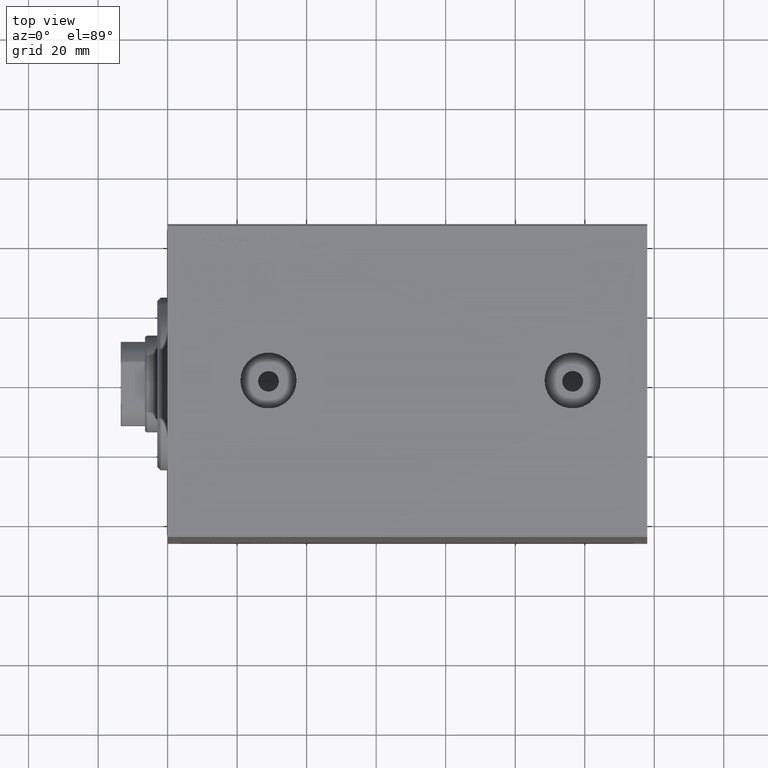
[diagram: clean part render]
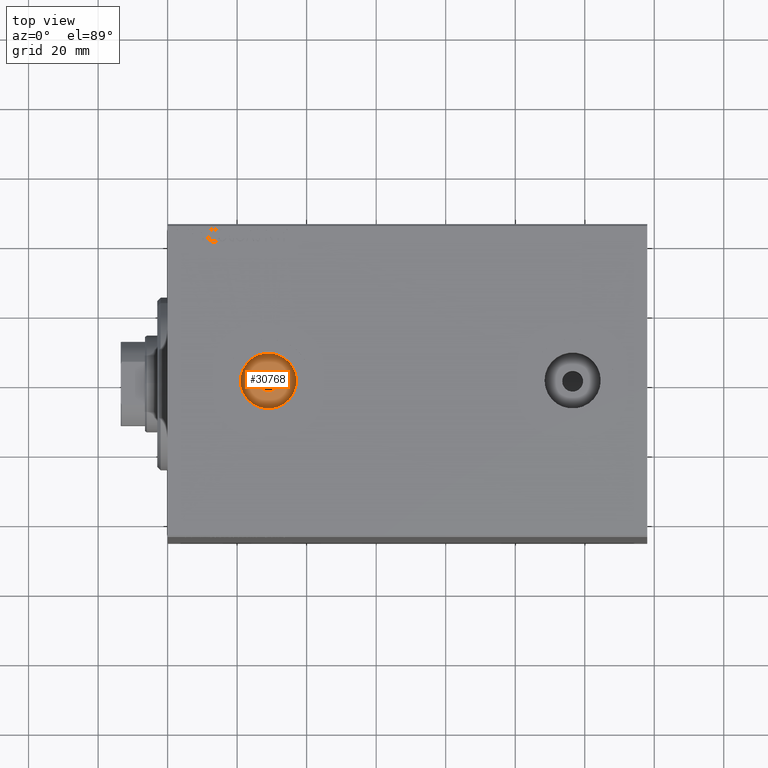
[diagram: same view with one face highlighted and labeled with its STEP entity id]
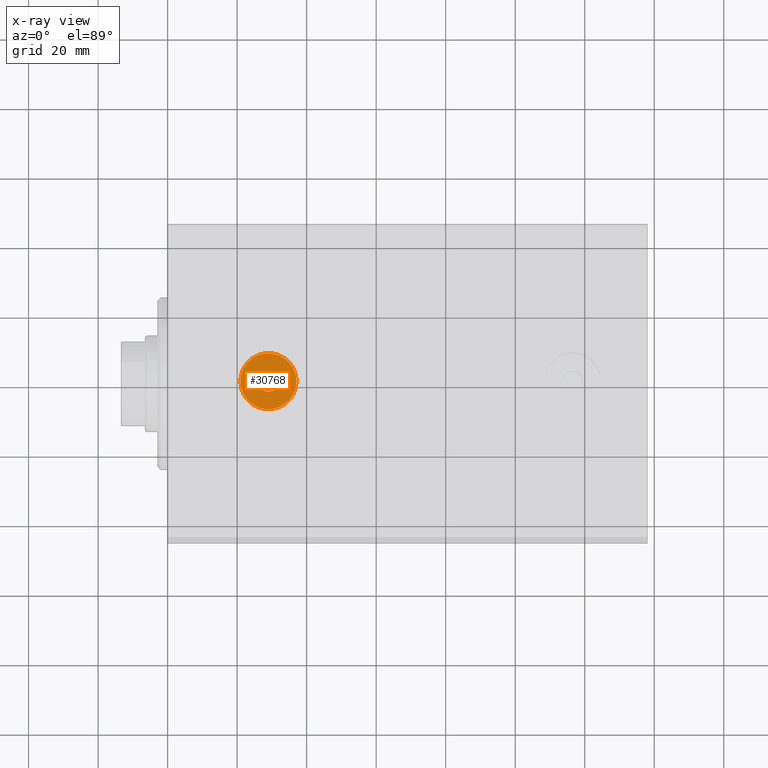
[diagram: x-ray of the same camera — body ghosted, the highlighted face saturated]
A machine part, top view. The second image highlights one B-rep face of the part: STEP entity #30768.
The next image is the same camera in x-ray: the body ghosted, the highlighted face saturated — about 0% of this face is hidden behind the body in this view.
In plain terms, the highlighted planar face has unit normal (0, 0, 1).
Its self-contained STEP definition (entity closure, byte-faithful):
#2703 = CARTESIAN_POINT ( 'NONE',  ( 26.00000000000000355, -8.498970393026143855E-15, 44.24000000000000199 ) ) ;
#3077 = DIRECTION ( 'NONE',  ( 0.000000000000000000, 0.000000000000000000, 1.000000000000000000 ) ) ;
#3550 = VERTEX_POINT ( 'NONE', #2703 ) ;
#5676 = AXIS2_PLACEMENT_3D ( 'NONE', #29906, #13846, #16987 ) ;
#6431 = PLANE ( 'NONE',  #7711 ) ;
#7377 = CARTESIAN_POINT ( 'NONE',  ( 29.00000000000000000, -8.866364432770349300E-15, 44.24000000000000199 ) ) ;
#7711 = AXIS2_PLACEMENT_3D ( 'NONE', #20034, #3077, #42668 ) ;
#10667 = EDGE_LOOP ( 'NONE', ( #15269, #33506 ) ) ;
#10868 = FACE_BOUND ( 'NONE', #37824, .T. ) ;
#11638 = CIRCLE ( 'NONE', #20891, 8.084999999999999076 ) ;
#12018 = EDGE_CURVE ( 'NONE', #12361, #15872, #11638, .T. ) ;
#12361 = VERTEX_POINT ( 'NONE', #38128 ) ;
#13164 = CARTESIAN_POINT ( 'NONE',  ( 37.08500000000000085, -8.866364432770349300E-15, 44.24000000000000199 ) ) ;
#13846 = DIRECTION ( 'NONE',  ( 0.000000000000000000, 0.000000000000000000, 1.000000000000000000 ) ) ;
#14245 = CIRCLE ( 'NONE', #5676, 2.999999999999999112 ) ;
#14302 = AXIS2_PLACEMENT_3D ( 'NONE', #25995, #39585, #32255 ) ;
#15269 = ORIENTED_EDGE ( 'NONE', *, *, #38566, .T. ) ;
#15872 = VERTEX_POINT ( 'NONE', #13164 ) ;
#16987 = DIRECTION ( 'NONE',  ( 1.000000000000000000, 0.000000000000000000, 0.000000000000000000 ) ) ;
#17243 = ORIENTED_EDGE ( 'NONE', *, *, #37431, .F. ) ;
#20034 = CARTESIAN_POINT ( 'NONE',  ( 29.00000000000000000, -8.866364432770349300E-15, 44.24000000000000199 ) ) ;
#20891 = AXIS2_PLACEMENT_3D ( 'NONE', #7377, #34345, #24784 ) ;
#23278 = DIRECTION ( 'NONE',  ( 0.000000000000000000, 0.000000000000000000, 1.000000000000000000 ) ) ;
#24784 = DIRECTION ( 'NONE',  ( 1.000000000000000000, 0.000000000000000000, 0.000000000000000000 ) ) ;
#25995 = CARTESIAN_POINT ( 'NONE',  ( 29.00000000000000000, -8.866364432770349300E-15, 44.24000000000000199 ) ) ;
#27846 = CIRCLE ( 'NONE', #34941, 8.084999999999999076 ) ;
#29906 = CARTESIAN_POINT ( 'NONE',  ( 29.00000000000000000, -8.866364432770349300E-15, 44.24000000000000199 ) ) ;
#30768 = ADVANCED_FACE ( 'NONE', ( #10868, #36964 ), #6431, .T. ) ;
#32255 = DIRECTION ( 'NONE',  ( 1.000000000000000000, 0.000000000000000000, 0.000000000000000000 ) ) ;
#33506 = ORIENTED_EDGE ( 'NONE', *, *, #12018, .T. ) ;
#33521 = DIRECTION ( 'NONE',  ( 1.000000000000000000, 0.000000000000000000, 0.000000000000000000 ) ) ;
#34202 = CIRCLE ( 'NONE', #14302, 2.999999999999999112 ) ;
#34345 = DIRECTION ( 'NONE',  ( 0.000000000000000000, 0.000000000000000000, 1.000000000000000000 ) ) ;
#34821 = EDGE_CURVE ( 'NONE', #42166, #3550, #14245, .T. ) ;
#34941 = AXIS2_PLACEMENT_3D ( 'NONE', #36417, #23278, #33521 ) ;
#36417 = CARTESIAN_POINT ( 'NONE',  ( 29.00000000000000000, -8.866364432770349300E-15, 44.24000000000000199 ) ) ;
#36964 = FACE_OUTER_BOUND ( 'NONE', #10667, .T. ) ;
#37431 = EDGE_CURVE ( 'NONE', #3550, #42166, #34202, .T. ) ;
#37824 = EDGE_LOOP ( 'NONE', ( #40206, #17243 ) ) ;
#38128 = CARTESIAN_POINT ( 'NONE',  ( 20.91500000000000270, -7.876237495659714933E-15, 44.24000000000000199 ) ) ;
#38566 = EDGE_CURVE ( 'NONE', #15872, #12361, #27846, .T. ) ;
#39585 = DIRECTION ( 'NONE',  ( 0.000000000000000000, 0.000000000000000000, 1.000000000000000000 ) ) ;
#40206 = ORIENTED_EDGE ( 'NONE', *, *, #34821, .F. ) ;
#42166 = VERTEX_POINT ( 'NONE', #43679 ) ;
#42668 = DIRECTION ( 'NONE',  ( 1.000000000000000000, 0.000000000000000000, -0.000000000000000000 ) ) ;
#43679 = CARTESIAN_POINT ( 'NONE',  ( 32.00000000000000000, -8.866364432770349300E-15, 44.24000000000000199 ) ) ;